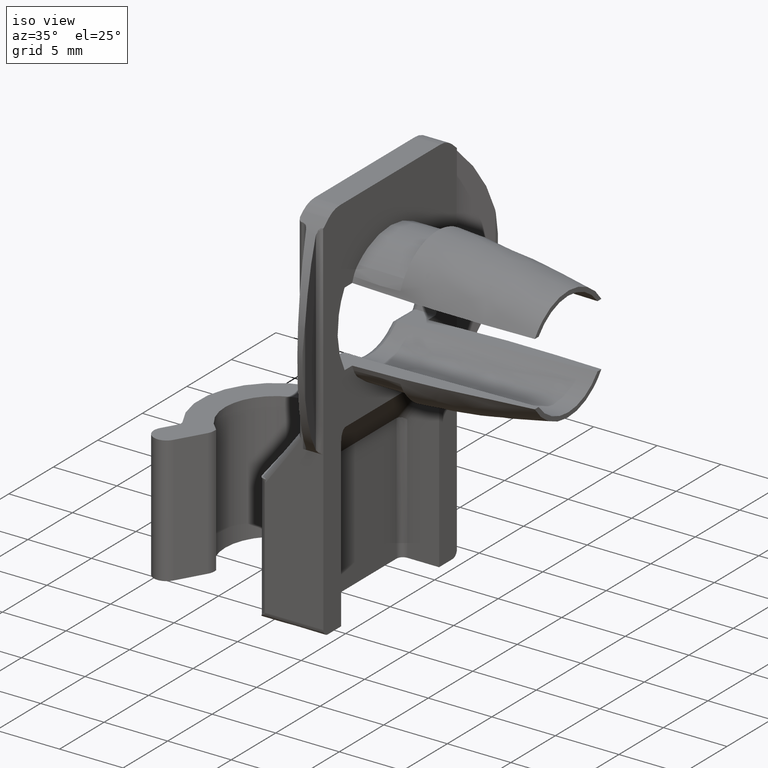
[diagram: clean part render]
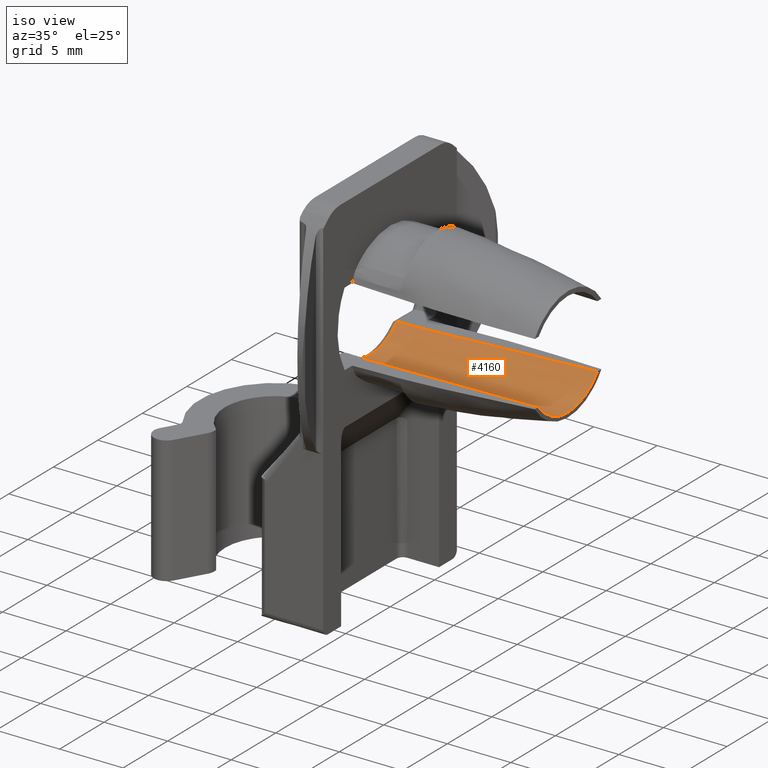
[diagram: same view with one face highlighted and labeled with its STEP entity id]
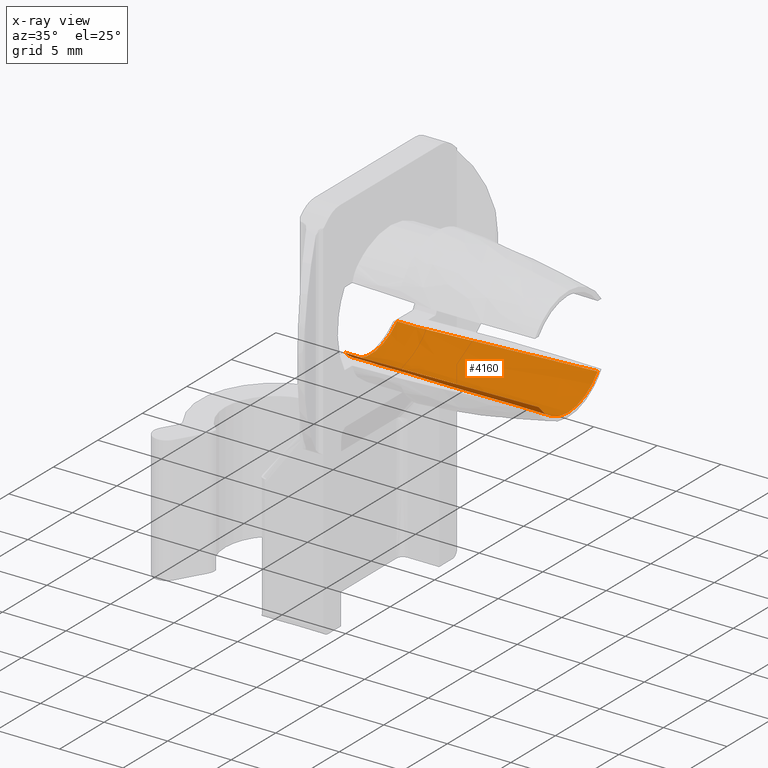
[diagram: x-ray of the same camera — body ghosted, the highlighted face saturated]
A machine part, iso view. The second image highlights one B-rep face of the part: STEP entity #4160.
The next image is the same camera in x-ray: the body ghosted, the highlighted face saturated — about 0% of this face is hidden behind the body in this view.
In plain terms, the highlighted face is a freeform B-spline surface patch.
Its self-contained STEP definition (entity closure, byte-faithful):
#852=CARTESIAN_POINT('',(-1.500000000000055,-2.931483560914855,-2.937499639503970));
#853=VERTEX_POINT('',#852);
#984=CARTESIAN_POINT('',(-1.500000000000055,2.931483560914855,-2.937499639503975));
#985=VERTEX_POINT('',#984);
#1025=CARTESIAN_POINT('',(-1.500000000000055,2.931483560914854,-2.937499639503972));
#1026=CARTESIAN_POINT('',(-1.500000000000055,-1.301043E-015,-5.862979442921125));
#1027=CARTESIAN_POINT('',(-1.500000000000055,-2.931483560914855,-2.937499639503971));
#1035=(BOUNDED_CURVE()B_SPLINE_CURVE(2,(#1025,#1026,#1027),.UNSPECIFIED.,.F.,.U.)CURVE()GEOMETRIC_REPRESENTATION_ITEM()QUASI_UNIFORM_CURVE()RATIONAL_B_SPLINE_CURVE((1.0,0.707831238434692,1.0))REPRESENTATION_ITEM(''));
#1036=EDGE_CURVE('',#985,#853,#1035,.T.);
#1131=CARTESIAN_POINT('',(14.000000999999980,-3.312476415010535,-2.500000000000000));
#1132=VERTEX_POINT('',#1131);
#1140=CARTESIAN_POINT('',(0.0,-2.931483560914855,-2.937499639503970));
#1141=VERTEX_POINT('',#1140);
#1142=CARTESIAN_POINT('',(14.000000999999980,-3.312476415010535,-2.500000000000000));
#1143=CARTESIAN_POINT('',(6.572874453938194,-3.137307382620636,-2.732097496794270));
#1144=CARTESIAN_POINT('',(0.0,-2.931483560914855,-2.937499639503970));
#1152=(BOUNDED_CURVE()B_SPLINE_CURVE(2,(#1142,#1143,#1144),.UNSPECIFIED.,.F.,.U.)CURVE()GEOMETRIC_REPRESENTATION_ITEM()QUASI_UNIFORM_CURVE()RATIONAL_B_SPLINE_CURVE((1.0,0.997554251139923,1.0))REPRESENTATION_ITEM(''));
#1153=EDGE_CURVE('',#1132,#1141,#1152,.T.);
#1243=CARTESIAN_POINT('',(0.0,2.931482514114905,-2.937500684159690));
#1244=VERTEX_POINT('',#1243);
#1250=CARTESIAN_POINT('',(14.000000999999980,3.312476415010315,-2.500000000000000));
#1251=VERTEX_POINT('',#1250);
#1252=CARTESIAN_POINT('',(0.0,2.931482514114905,-2.937500684159690));
#1253=CARTESIAN_POINT('',(6.572874452721936,3.137306827443534,-2.732098050976908));
#1254=CARTESIAN_POINT('',(14.000000999999980,3.312476415010315,-2.500000000000000));
#1262=(BOUNDED_CURVE()B_SPLINE_CURVE(2,(#1252,#1253,#1254),.UNSPECIFIED.,.F.,.U.)CURVE()GEOMETRIC_REPRESENTATION_ITEM()QUASI_UNIFORM_CURVE()RATIONAL_B_SPLINE_CURVE((1.0,0.997554251127774,1.0))REPRESENTATION_ITEM(''));
#1263=EDGE_CURVE('',#1244,#1251,#1262,.T.);
#1297=CARTESIAN_POINT('',(0.0,-2.931483560914855,-2.937499639503970));
#1298=CARTESIAN_POINT('',(-1.500000000000055,-2.931483560914855,-2.937499639503970));
#1299=QUASI_UNIFORM_CURVE('',1,(#1297,#1298),.UNSPECIFIED.,.F.,.U.);
#1300=EDGE_CURVE('',#1141,#853,#1299,.T.);
#1332=CARTESIAN_POINT('',(0.0,2.931482514114905,-2.937500684159690));
#1333=CARTESIAN_POINT('',(-1.500000000000055,2.931483560914855,-2.937499639503975));
#1334=QUASI_UNIFORM_CURVE('',1,(#1332,#1333),.UNSPECIFIED.,.F.,.U.);
#1335=EDGE_CURVE('',#1244,#985,#1334,.T.);
#4124=CARTESIAN_POINT('',(14.387501025000001,-3.334166624804477,-2.470998364637239));
#4125=CARTESIAN_POINT('',(-1.897187525625055,-3.334166624804477,-2.470998364637239));
#4126=CARTESIAN_POINT('',(14.387501025000001,0.130045318152512,-7.145327577781792));
#4127=CARTESIAN_POINT('',(-1.897187525625056,0.130045318152512,-7.145327577781792));
#4128=CARTESIAN_POINT('',(14.387501025000001,3.421873328730282,-2.348038100654317));
#4129=CARTESIAN_POINT('',(-1.897187525625055,3.421873328730282,-2.348038100654317));
#4137=(BOUNDED_SURFACE()B_SPLINE_SURFACE(1,2,((#4124,#4126,#4128),(#4125,#4127,#4129)),.UNSPECIFIED.,.F.,.F.,.U.)B_SPLINE_SURFACE_WITH_KNOTS((2,2),(3,3),(0.0,16.284688550625059),(0.0,8.549561798368790),.UNSPECIFIED.)GEOMETRIC_REPRESENTATION_ITEM()RATIONAL_B_SPLINE_SURFACE(((1.0,0.580702955710940,1.0),(1.0,0.580702955710940,1.0)))REPRESENTATION_ITEM('')SURFACE());
#4138=ORIENTED_EDGE('',*,*,#1335,.T.);
#4139=ORIENTED_EDGE('',*,*,#1036,.T.);
#4140=ORIENTED_EDGE('',*,*,#1300,.F.);
#4141=ORIENTED_EDGE('',*,*,#1153,.F.);
#4142=CARTESIAN_POINT('',(14.000000999999980,-3.312476415010535,-2.500000000000000));
#4143=CARTESIAN_POINT('',(14.000000999999999,-2.067184529668188,-4.150000000000000));
#4144=CARTESIAN_POINT('',(14.000000999999999,0.0,-4.150000000000000));
#4145=CARTESIAN_POINT('',(14.000000999999999,2.067184529668104,-4.150000000000000));
#4146=CARTESIAN_POINT('',(14.000000999999980,3.312476415010315,-2.500000000000000));
#4154=(BOUNDED_CURVE()B_SPLINE_CURVE(2,(#4142,#4143,#4144,#4145,#4146),.UNSPECIFIED.,.F.,.U.)B_SPLINE_CURVE_WITH_KNOTS((3,2,3),(0.0,0.500000000000000,1.0),.UNSPECIFIED.)CURVE()GEOMETRIC_REPRESENTATION_ITEM()RATIONAL_B_SPLINE_CURVE((1.0,0.895100452059488,1.0,0.895100452059488,1.0))REPRESENTATION_ITEM(''));
#4155=EDGE_CURVE('',#1132,#1251,#4154,.T.);
#4156=ORIENTED_EDGE('',*,*,#4155,.T.);
#4157=ORIENTED_EDGE('',*,*,#1263,.F.);
#4158=EDGE_LOOP('',(#4138,#4139,#4140,#4141,#4156,#4157));
#4159=FACE_OUTER_BOUND('',#4158,.T.);
#4160=ADVANCED_FACE('',(#4159),#4137,.F.);